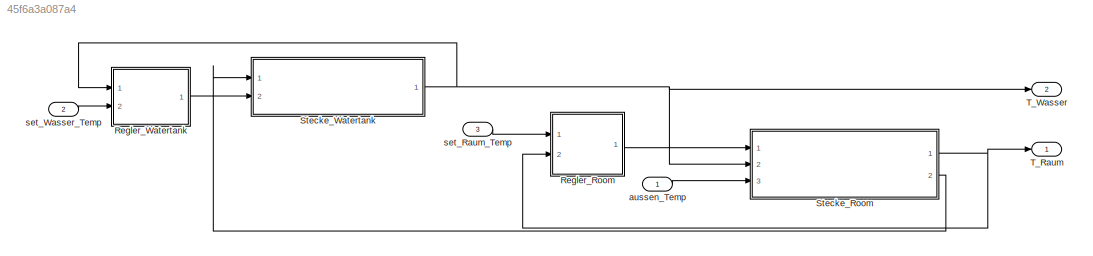
MODEL slx_45f6a3a087a4
KIND model
CONFIG AbsTol = auto
CONFIG EnableMultiTasking = off
CONFIG FixedStep = auto
CONFIG MaxStep = auto
CONFIG MinStep = auto
CONFIG RelTol = 1e-3
CONFIG SampleTimeConstraint = Unconstrained
CONFIG Solver = FixedStepAuto
CONFIG SolverName = FixedStepAuto
CONFIG StartTime = 0.0
CONFIG StopTime = 3600
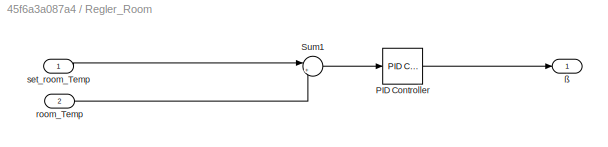
BLOCK [SubSystem] Regler_Room
  Ports = [2, 1]
  RequestExecContextInheritance = off
  Variant = off
BLOCK [Reference] Regler_Room/PID Controller  REF=simulink/Continuous/PID Controller
  Ports = [1, 1]
  SourceBlock = simulink/Continuous/PID Controller
  SourceProductBaseCode = SL
  SourceProductName = Simulink
  SourceType = PID 1dof
BLOCK [Sum] Regler_Room/Sum1
  IconShape = round
  InputSameDT = off
  Inputs = |+-
  OutDataTypeStr = Inherit: Inherit via internal rule
  Ports = [2, 1]
  SaturateOnIntegerOverflow = off
BLOCK [Inport] Regler_Room/room_Temp
  IconDisplay = Port number
  Port = 2
BLOCK [Inport] Regler_Room/set_room_Temp
  IconDisplay = Port number
BLOCK [Outport] Regler_Room/ß
  IconDisplay = Port number
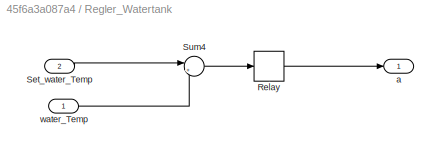
BLOCK [SubSystem] Regler_Watertank
  Ports = [2, 1]
  RequestExecContextInheritance = off
  Variant = off
BLOCK [Relay] Regler_Watertank/Relay
  InputProcessing = Elements as channels (sample based)
  OffSwitchValue = -0.5
  OnSwitchValue = 0.5
BLOCK [Inport] Regler_Watertank/Set_water_Temp
  IconDisplay = Port number
  Port = 2
BLOCK [Sum] Regler_Watertank/Sum4
  IconShape = round
  InputSameDT = off
  Inputs = |+-
  OutDataTypeStr = Inherit: Inherit via internal rule
  Ports = [2, 1]
  SaturateOnIntegerOverflow = off
BLOCK [Outport] Regler_Watertank/a
  IconDisplay = Port number
BLOCK [Inport] Regler_Watertank/water_Temp
  IconDisplay = Port number
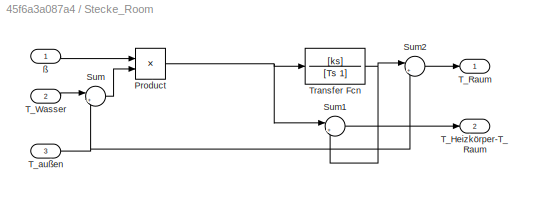
BLOCK [SubSystem] Stecke_Room
  Ports = [3, 2]
  RequestExecContextInheritance = off
  Variant = off
BLOCK [Product] Stecke_Room/Product
  InputSameDT = off
  OutDataTypeStr = Inherit: Inherit via internal rule
  Ports = [2, 1]
  RndMeth = Floor
  SaturateOnIntegerOverflow = off
BLOCK [Sum] Stecke_Room/Sum
  IconShape = round
  InputSameDT = off
  Inputs = |+-
  OutDataTypeStr = Inherit: Inherit via internal rule
  Ports = [2, 1]
  SaturateOnIntegerOverflow = off
BLOCK [Sum] Stecke_Room/Sum1
  IconShape = round
  InputSameDT = off
  Inputs = |+-
  OutDataTypeStr = Inherit: Inherit via internal rule
  Ports = [2, 1]
  SaturateOnIntegerOverflow = off
BLOCK [Sum] Stecke_Room/Sum2
  IconShape = round
  InputSameDT = off
  Inputs = |++
  OutDataTypeStr = Inherit: Inherit via internal rule
  Ports = [2, 1]
  SaturateOnIntegerOverflow = off
BLOCK [Outport] Stecke_Room/T_Heizkörper-T_Raum
  IconDisplay = Port number
  Port = 2
BLOCK [Outport] Stecke_Room/T_Raum
  IconDisplay = Port number
BLOCK [Inport] Stecke_Room/T_Wasser
  IconDisplay = Port number
  Port = 2
BLOCK [Inport] Stecke_Room/T_außen
  IconDisplay = Port number
  Port = 3
BLOCK [TransferFcn] Stecke_Room/Transfer Fcn
  Denominator = [Ts 1]
  Numerator = [ks]
BLOCK [Inport] Stecke_Room/ß
  IconDisplay = Port number
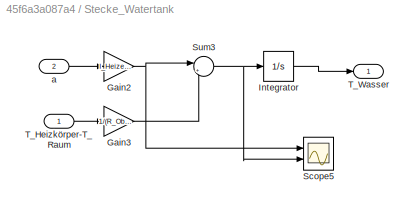
BLOCK [SubSystem] Stecke_Watertank
  Ports = [2, 1]
  RequestExecContextInheritance = off
  Variant = off
BLOCK [Gain] Stecke_Watertank/Gain2
  Gain = I_Heizelement/(c_Wasser*m_Kessel)
  OutDataTypeStr = Inherit: Inherit via internal rule
  ParamDataTypeStr = Inherit: Inherit via internal rule
  SaturateOnIntegerOverflow = off
BLOCK [Gain] Stecke_Watertank/Gain3
  Gain = 1/(R_Oberflaeche*c_Wasser*m_Kessel)
  OutDataTypeStr = Inherit: Inherit via internal rule
  ParamDataTypeStr = Inherit: Inherit via internal rule
  SaturateOnIntegerOverflow = off
BLOCK [Integrator] Stecke_Watertank/Integrator
  InitialCondition = 20
  Ports = [1, 1]
BLOCK [Scope] Stecke_Watertank/Scope5
  NumInputPorts = 2
  Ports = [2]
  ScopeSpecificationString = Simulink.scopes.TimeScopeBlockCfg('CurrentConfiguration', extmgr.ConfigurationSet(extmgr.Configuration('Core','General UI',true),extmgr.Configuration('Core','Source UI',true),extmgr.Configuration('Sources','WiredSimulink',true,'DataLoggingVariableName','ScopeData5'),extmgr.Configuration('Visuals','Time Domain',true,'SerializedDisplays',{struct('MinYLimReal','-358.56091','MaxYLimReal','110.16254','...<+1462ch>
BLOCK [Sum] Stecke_Watertank/Sum3
  IconShape = round
  InputSameDT = off
  Inputs = |+-
  OutDataTypeStr = Inherit: Inherit via internal rule
  Ports = [2, 1]
  SaturateOnIntegerOverflow = off
BLOCK [Inport] Stecke_Watertank/T_Heizkörper-T_Raum
  IconDisplay = Port number
BLOCK [Outport] Stecke_Watertank/T_Wasser
  IconDisplay = Port number
BLOCK [Inport] Stecke_Watertank/a
  IconDisplay = Port number
  Port = 2
BLOCK [Outport] T_Raum
  IconDisplay = Port number
BLOCK [Outport] T_Wasser
  IconDisplay = Port number
  Port = 2
BLOCK [Inport] aussen_Temp
  IconDisplay = Port number
BLOCK [Inport] set_Raum_Temp
  IconDisplay = Port number
  Port = 3
BLOCK [Inport] set_Wasser_Temp
  IconDisplay = Port number
  Port = 2
LINE Regler_Room/PID Controller:1 -> Regler_Room/ß:1
LINE Regler_Room/Sum1:1 -> Regler_Room/PID Controller:1
LINE Regler_Room/room_Temp:1 -> Regler_Room/Sum1:2
LINE Regler_Room/set_room_Temp:1 -> Regler_Room/Sum1:1
LINE Regler_Room:1 -> Stecke_Room:1
LINE Regler_Watertank/Relay:1 -> Regler_Watertank/a:1
LINE Regler_Watertank/Set_water_Temp:1 -> Regler_Watertank/Sum4:1
LINE Regler_Watertank/Sum4:1 -> Regler_Watertank/Relay:1
LINE Regler_Watertank/water_Temp:1 -> Regler_Watertank/Sum4:2
LINE Regler_Watertank:1 -> Stecke_Watertank:2
NET Stecke_Room/Product:1 -> Stecke_Room/Sum1:1, Stecke_Room/Transfer Fcn:1
LINE Stecke_Room/Sum1:1 -> Stecke_Room/T_Heizkörper-T_Raum:1
LINE Stecke_Room/Sum2:1 -> Stecke_Room/T_Raum:1
LINE Stecke_Room/Sum:1 -> Stecke_Room/Product:2
LINE Stecke_Room/T_Wasser:1 -> Stecke_Room/Sum:1
NET Stecke_Room/T_außen:1 -> Stecke_Room/Sum2:2, Stecke_Room/Sum:2
NET Stecke_Room/Transfer Fcn:1 -> Stecke_Room/Sum1:2, Stecke_Room/Sum2:1
LINE Stecke_Room/ß:1 -> Stecke_Room/Product:1
NET Stecke_Room:1 -> Regler_Room:2, T_Raum:1
LINE Stecke_Room:2 -> Stecke_Watertank:1
NET Stecke_Watertank/Gain2:1 -> Stecke_Watertank/Scope5:1, Stecke_Watertank/Sum3:1
LINE Stecke_Watertank/Gain3:1 -> Stecke_Watertank/Sum3:2
LINE Stecke_Watertank/Integrator:1 -> Stecke_Watertank/T_Wasser:1
NET Stecke_Watertank/Sum3:1 -> Stecke_Watertank/Integrator:1, Stecke_Watertank/Scope5:2
LINE Stecke_Watertank/T_Heizkörper-T_Raum:1 -> Stecke_Watertank/Gain3:1
LINE Stecke_Watertank/a:1 -> Stecke_Watertank/Gain2:1
NET Stecke_Watertank:1 -> Regler_Watertank:1, Stecke_Room:2, T_Wasser:1
LINE aussen_Temp:1 -> Stecke_Room:3
LINE set_Raum_Temp:1 -> Regler_Room:1
LINE set_Wasser_Temp:1 -> Regler_Watertank:2
note: NET lines group one-source signal fan-out (src -> all destinations, sorted); 1:1 wires keep LINE
